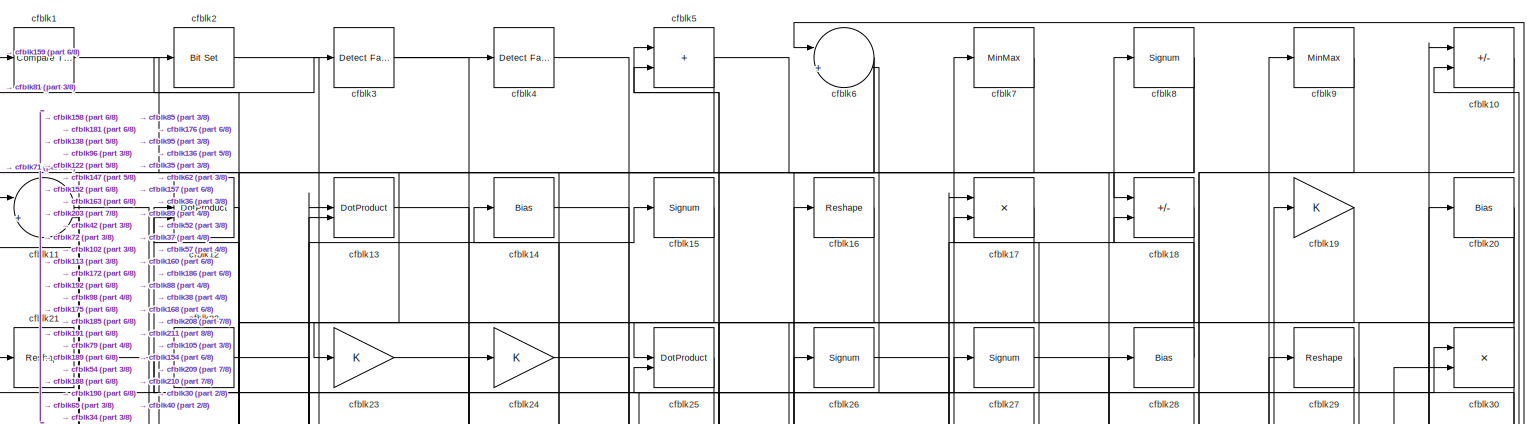
[diagram: root canvas - part 1/8, full width, top band]
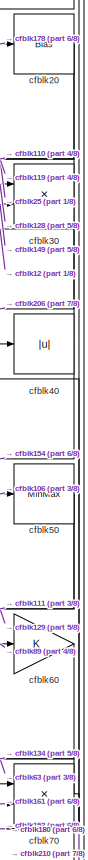
[diagram: root canvas - part 2/8, top right region]
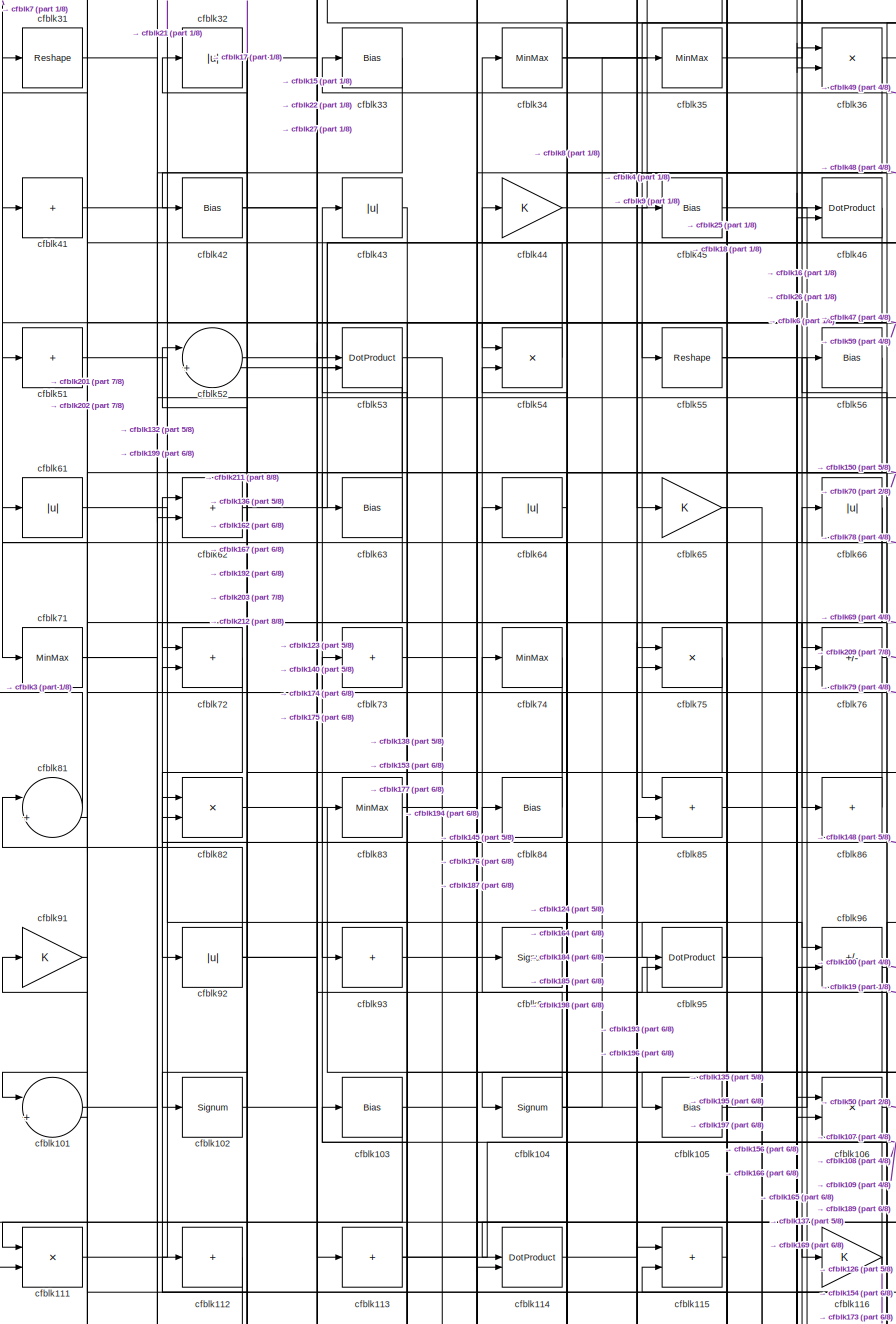
[diagram: root canvas - part 3/8, middle left region]
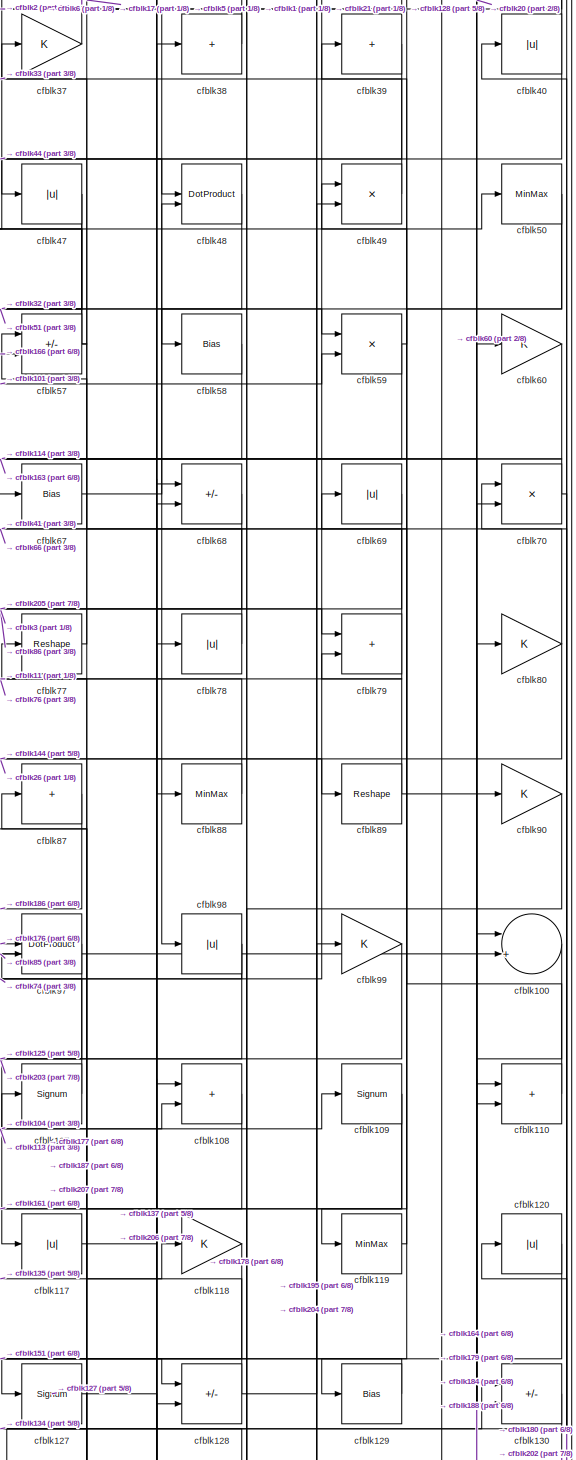
[diagram: root canvas - part 4/8, middle right region]
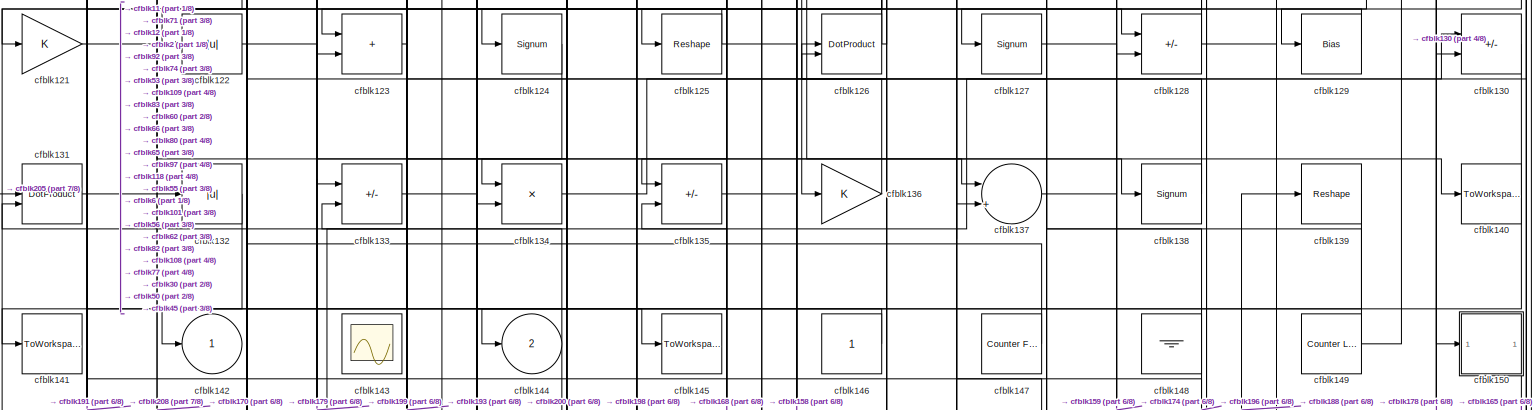
[diagram: root canvas - part 5/8, full width, middle band]
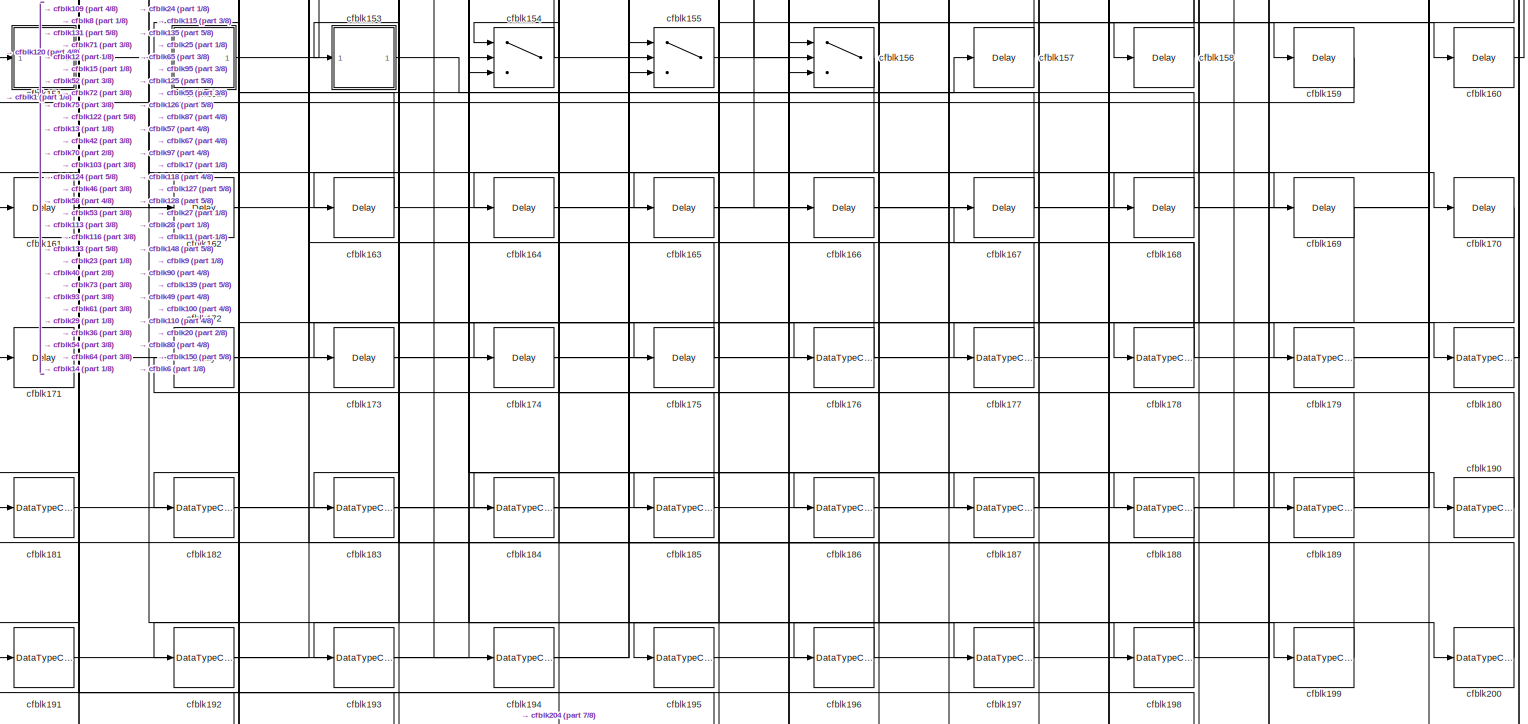
[diagram: root canvas - part 6/8, full width, bottom band]
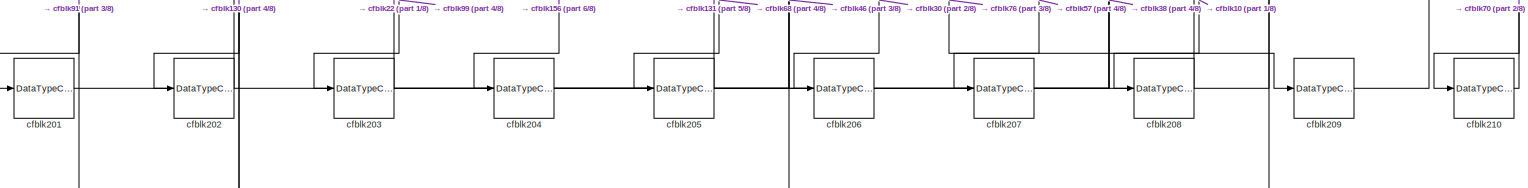
[diagram: root canvas - part 7/8, full width, bottom band]
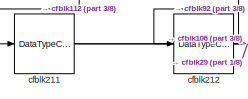
[diagram: root canvas - part 8/8, bottom left region]
MODEL slx_684dc59aae4f
KIND model
CONFIG AbsTol = auto
CONFIG EnableMultiTasking = off
CONFIG FixedStep = auto
CONFIG MaxStep = auto
CONFIG MinStep = auto
CONFIG RelTol = 1e-3
CONFIG SampleTimeConstraint = Unconstrained
CONFIG SolverName = VariableStepAuto
CONFIG StartTime = 0.0
CONFIG StopTime = 10.0
BLOCK [Reference] cfblk1  REF=hdlsllib/Logic and Bit
Operations/Compare
To Zero
  SourceBlock = hdlsllib/Logic and Bit\nOperations/Compare\nTo Zero
  SourceType = Compare To Zero
BLOCK [Sum] cfblk10
  IconShape = rectangular
  Inputs = +-
BLOCK [Sum] cfblk100
  Inputs = |++
BLOCK [Sum] cfblk101
  Inputs = |++
BLOCK [Signum] cfblk102
BLOCK [Bias] cfblk103
  Bias = 0.0
  SaturateOnIntegerOverflow = off
BLOCK [Signum] cfblk104
BLOCK [Bias] cfblk105
  Bias = 0.0
  SaturateOnIntegerOverflow = off
BLOCK [Product] cfblk106
  Inputs = */
  RndMeth = Zero
  SaturateOnIntegerOverflow = on
BLOCK [Signum] cfblk107
BLOCK [Sum] cfblk108
  IconShape = rectangular
BLOCK [Signum] cfblk109
BLOCK [Sum] cfblk11
  Inputs = |++
BLOCK [Sum] cfblk110
  IconShape = rectangular
BLOCK [Product] cfblk111
  Inputs = */
  RndMeth = Zero
  SaturateOnIntegerOverflow = on
BLOCK [Sum] cfblk112
  IconShape = rectangular
  Inputs = +
BLOCK [Sum] cfblk113
  IconShape = rectangular
  Inputs = +
BLOCK [DotProduct] cfblk114
  OutDataTypeStr = Inherit: Inherit via internal rule
BLOCK [Sum] cfblk115
  IconShape = rectangular
BLOCK [Gain] cfblk116
BLOCK [Abs] cfblk117
  SaturateOnIntegerOverflow = off
BLOCK [Gain] cfblk118
BLOCK [MinMax] cfblk119
BLOCK [DotProduct] cfblk12
  OutDataTypeStr = Inherit: Inherit via internal rule
BLOCK [Abs] cfblk120
  SaturateOnIntegerOverflow = off
BLOCK [Gain] cfblk121
BLOCK [Abs] cfblk122
  SaturateOnIntegerOverflow = off
BLOCK [Sum] cfblk123
  IconShape = rectangular
BLOCK [Signum] cfblk124
BLOCK [Reshape] cfblk125
BLOCK [DotProduct] cfblk126
  OutDataTypeStr = Inherit: Inherit via internal rule
BLOCK [Signum] cfblk127
BLOCK [Sum] cfblk128
  IconShape = rectangular
  Inputs = +-
BLOCK [Bias] cfblk129
  Bias = 0.0
  SaturateOnIntegerOverflow = off
BLOCK [DotProduct] cfblk13
  OutDataTypeStr = Inherit: Inherit via internal rule
BLOCK [Sum] cfblk130
  IconShape = rectangular
  Inputs = +-
BLOCK [DotProduct] cfblk131
  OutDataTypeStr = Inherit: Inherit via internal rule
BLOCK [Abs] cfblk132
  SaturateOnIntegerOverflow = off
BLOCK [Sum] cfblk133
  IconShape = rectangular
  Inputs = +-
BLOCK [Product] cfblk134
  Inputs = */
  RndMeth = Zero
  SaturateOnIntegerOverflow = on
BLOCK [Sum] cfblk135
  IconShape = rectangular
  Inputs = +-
BLOCK [Gain] cfblk136
BLOCK [Sum] cfblk137
  Inputs = |++
BLOCK [Signum] cfblk138
BLOCK [Reshape] cfblk139
BLOCK [Bias] cfblk14
  Bias = 0.0
  SaturateOnIntegerOverflow = off
BLOCK [ToWorkspace] cfblk140
  MaxDataPoints = inf
  SampleTime = -1
  SaveFormat = Timeseries
  VariableName = simout
BLOCK [ToWorkspace] cfblk141
  MaxDataPoints = inf
  SampleTime = -1
  SaveFormat = Timeseries
  VariableName = simout
BLOCK [Outport] cfblk142
  VectorParamsAs1DForOutWhenUnconnected = off
BLOCK [Scope] cfblk143
  Floating = on
  NumInputPorts = 1
  ScopeSpecificationString = Simulink.scopes.TimeScopeBlockCfg('CurrentConfiguration', extmgr.ConfigurationSet(extmgr.Configuration('Core','General UI',true,'FigureColor',[0.156862745098039 0.156862745098039 0.156862745098039]),extmgr.Configuration('Core','Source UI',true),extmgr.Configuration('Sources','WiredSimulink',true,'DataLoggingVariableName','ScopeData1','DataLoggingSaveFormat','StructureWithTime','DataLoggingLimitDat...<+2713ch>
BLOCK [Outport] cfblk144
  Port = 2
  VectorParamsAs1DForOutWhenUnconnected = off
BLOCK [ToWorkspace] cfblk145
  MaxDataPoints = inf
  SampleTime = -1
  SaveFormat = Timeseries
  VariableName = simout
BLOCK [Constant] cfblk146
  SampleTime = -1
BLOCK [Reference] cfblk147  REF=hdlsllib/Sources/Counter
Free-Running
  SourceBlock = hdlsllib/Sources/Counter\nFree-Running
  SourceType = Counter Free-Running
BLOCK [Ground] cfblk148
BLOCK [Reference] cfblk149  REF=hdlsllib/Sources/Counter
Limited
  SourceBlock = hdlsllib/Sources/Counter\nLimited
  SourceType = Counter Limited
BLOCK [Signum] cfblk15
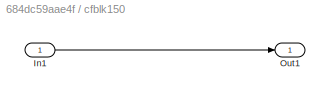
BLOCK [SubSystem] cfblk150
  LibrarySourceBlock = hdlsllib/Ports &\nSubsystems/Subsystem
BLOCK [Inport] cfblk150/In1
BLOCK [Outport] cfblk150/Out1
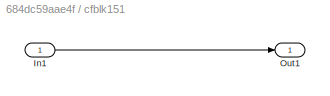
BLOCK [SubSystem] cfblk151
  LibrarySourceBlock = hdlsllib/Ports &\nSubsystems/Subsystem
BLOCK [Inport] cfblk151/In1
BLOCK [Outport] cfblk151/Out1
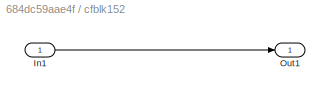
BLOCK [SubSystem] cfblk152
  LibrarySourceBlock = hdlsllib/Ports &\nSubsystems/Subsystem
BLOCK [Inport] cfblk152/In1
BLOCK [Outport] cfblk152/Out1
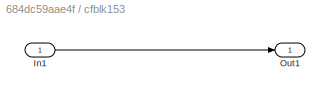
BLOCK [SubSystem] cfblk153
  LibrarySourceBlock = hdlsllib/Ports &\nSubsystems/Subsystem
BLOCK [Inport] cfblk153/In1
BLOCK [Outport] cfblk153/Out1
BLOCK [Switch] cfblk154
  InputSameDT = off
  SaturateOnIntegerOverflow = off
BLOCK [Switch] cfblk155
  InputSameDT = off
  SaturateOnIntegerOverflow = off
BLOCK [Switch] cfblk156
  InputSameDT = off
  SaturateOnIntegerOverflow = off
BLOCK [Delay] cfblk157
  InputPortMap = u0
  SampleTime = 1
BLOCK [Delay] cfblk158
  InputPortMap = u0
  SampleTime = 1
BLOCK [Delay] cfblk159
  InputPortMap = u0
  SampleTime = 1
BLOCK [Reshape] cfblk16
BLOCK [Delay] cfblk160
  InputPortMap = u0
  SampleTime = 1
BLOCK [Delay] cfblk161
  InputPortMap = u0
  SampleTime = 1
BLOCK [Delay] cfblk162
  InputPortMap = u0
  SampleTime = 1
BLOCK [Delay] cfblk163
  InputPortMap = u0
  SampleTime = 1
BLOCK [Delay] cfblk164
  InputPortMap = u0
  SampleTime = 1
BLOCK [Delay] cfblk165
  InputPortMap = u0
  SampleTime = 1
BLOCK [Delay] cfblk166
  InputPortMap = u0
  SampleTime = 1
BLOCK [Delay] cfblk167
  InputPortMap = u0
  SampleTime = 1
BLOCK [Delay] cfblk168
  InputPortMap = u0
  SampleTime = 1
BLOCK [Delay] cfblk169
  InputPortMap = u0
  SampleTime = 1
BLOCK [Product] cfblk17
  Inputs = */
  RndMeth = Zero
  SaturateOnIntegerOverflow = on
BLOCK [Delay] cfblk170
  InputPortMap = u0
  SampleTime = 1
BLOCK [Delay] cfblk171
  InputPortMap = u0
  SampleTime = 1
BLOCK [Delay] cfblk172
  InputPortMap = u0
  SampleTime = 1
BLOCK [Delay] cfblk173
  InputPortMap = u0
  SampleTime = 1
BLOCK [Delay] cfblk174
  InputPortMap = u0
  SampleTime = 1
BLOCK [Delay] cfblk175
  InputPortMap = u0
  SampleTime = 1
BLOCK [DataTypeConversion] cfblk176
  RndMeth = Floor
  SaturateOnIntegerOverflow = off
BLOCK [DataTypeConversion] cfblk177
  OutDataTypeStr = uint8
  RndMeth = Floor
  SaturateOnIntegerOverflow = off
BLOCK [DataTypeConversion] cfblk178
  RndMeth = Floor
  SaturateOnIntegerOverflow = off
BLOCK [DataTypeConversion] cfblk179
  OutDataTypeStr = uint8
  RndMeth = Floor
  SaturateOnIntegerOverflow = off
BLOCK [Sum] cfblk18
  IconShape = rectangular
  Inputs = +-
BLOCK [DataTypeConversion] cfblk180
  RndMeth = Floor
  SaturateOnIntegerOverflow = off
BLOCK [DataTypeConversion] cfblk181
  OutDataTypeStr = uint8
  RndMeth = Floor
  SaturateOnIntegerOverflow = off
BLOCK [DataTypeConversion] cfblk182
  OutDataTypeStr = uint8
  RndMeth = Floor
  SaturateOnIntegerOverflow = off
BLOCK [DataTypeConversion] cfblk183
  OutDataTypeStr = uint8
  RndMeth = Floor
  SaturateOnIntegerOverflow = off
BLOCK [DataTypeConversion] cfblk184
  OutDataTypeStr = uint8
  RndMeth = Floor
  SaturateOnIntegerOverflow = off
BLOCK [DataTypeConversion] cfblk185
  OutDataTypeStr = uint8
  RndMeth = Floor
  SaturateOnIntegerOverflow = off
BLOCK [DataTypeConversion] cfblk186
  RndMeth = Floor
  SaturateOnIntegerOverflow = off
BLOCK [DataTypeConversion] cfblk187
  OutDataTypeStr = uint8
  RndMeth = Floor
  SaturateOnIntegerOverflow = off
BLOCK [DataTypeConversion] cfblk188
  RndMeth = Floor
  SaturateOnIntegerOverflow = off
BLOCK [DataTypeConversion] cfblk189
  OutDataTypeStr = uint8
  RndMeth = Floor
  SaturateOnIntegerOverflow = off
BLOCK [Gain] cfblk19
BLOCK [DataTypeConversion] cfblk190
  OutDataTypeStr = uint8
  RndMeth = Floor
  SaturateOnIntegerOverflow = off
BLOCK [DataTypeConversion] cfblk191
  OutDataTypeStr = uint8
  RndMeth = Floor
  SaturateOnIntegerOverflow = off
BLOCK [DataTypeConversion] cfblk192
  OutDataTypeStr = uint8
  RndMeth = Floor
  SaturateOnIntegerOverflow = off
BLOCK [DataTypeConversion] cfblk193
  OutDataTypeStr = uint8
  RndMeth = Floor
  SaturateOnIntegerOverflow = off
BLOCK [DataTypeConversion] cfblk194
  OutDataTypeStr = uint8
  RndMeth = Floor
  SaturateOnIntegerOverflow = off
BLOCK [DataTypeConversion] cfblk195
  OutDataTypeStr = uint8
  RndMeth = Floor
  SaturateOnIntegerOverflow = off
BLOCK [DataTypeConversion] cfblk196
  OutDataTypeStr = uint8
  RndMeth = Floor
  SaturateOnIntegerOverflow = off
BLOCK [DataTypeConversion] cfblk197
  OutDataTypeStr = uint8
  RndMeth = Floor
  SaturateOnIntegerOverflow = off
BLOCK [DataTypeConversion] cfblk198
  RndMeth = Floor
  SaturateOnIntegerOverflow = off
BLOCK [DataTypeConversion] cfblk199
  OutDataTypeStr = uint8
  RndMeth = Floor
  SaturateOnIntegerOverflow = off
BLOCK [Reference] cfblk2  REF=simulink/Logic and Bit
Operations/Bit Set
  LibrarySourceBlock = hdlsllib/Logic and Bit\nOperations/Bit Set
  SourceBlock = simulink/Logic and Bit\nOperations/Bit Set
  SourceType = Bit Set
BLOCK [Bias] cfblk20
  Bias = 0.0
  SaturateOnIntegerOverflow = off
BLOCK [DataTypeConversion] cfblk200
  OutDataTypeStr = uint8
  RndMeth = Floor
  SaturateOnIntegerOverflow = off
BLOCK [DataTypeConversion] cfblk201
  OutDataTypeStr = uint8
  RndMeth = Floor
  SaturateOnIntegerOverflow = off
BLOCK [DataTypeConversion] cfblk202
  OutDataTypeStr = uint8
  RndMeth = Floor
  SaturateOnIntegerOverflow = off
BLOCK [DataTypeConversion] cfblk203
  RndMeth = Floor
  SaturateOnIntegerOverflow = off
BLOCK [DataTypeConversion] cfblk204
  OutDataTypeStr = uint8
  RndMeth = Floor
  SaturateOnIntegerOverflow = off
BLOCK [DataTypeConversion] cfblk205
  OutDataTypeStr = uint8
  RndMeth = Floor
  SaturateOnIntegerOverflow = off
BLOCK [DataTypeConversion] cfblk206
  OutDataTypeStr = uint8
  RndMeth = Floor
  SaturateOnIntegerOverflow = off
BLOCK [DataTypeConversion] cfblk207
  OutDataTypeStr = uint8
  RndMeth = Floor
  SaturateOnIntegerOverflow = off
BLOCK [DataTypeConversion] cfblk208
  OutDataTypeStr = uint8
  RndMeth = Floor
  SaturateOnIntegerOverflow = off
BLOCK [DataTypeConversion] cfblk209
  OutDataTypeStr = uint8
  RndMeth = Floor
  SaturateOnIntegerOverflow = off
BLOCK [Reshape] cfblk21
BLOCK [DataTypeConversion] cfblk210
  OutDataTypeStr = uint8
  RndMeth = Floor
  SaturateOnIntegerOverflow = off
BLOCK [DataTypeConversion] cfblk211
  RndMeth = Floor
  SaturateOnIntegerOverflow = off
BLOCK [DataTypeConversion] cfblk212
  OutDataTypeStr = uint8
  RndMeth = Floor
  SaturateOnIntegerOverflow = off
BLOCK [Sum] cfblk22
  IconShape = rectangular
  Inputs = +
BLOCK [Gain] cfblk23
BLOCK [Gain] cfblk24
BLOCK [DotProduct] cfblk25
  OutDataTypeStr = Inherit: Inherit via internal rule
BLOCK [Signum] cfblk26
BLOCK [Signum] cfblk27
BLOCK [Bias] cfblk28
  Bias = 0.0
  SaturateOnIntegerOverflow = off
BLOCK [Reshape] cfblk29
BLOCK [Reference] cfblk3  REF=hdlsllib/Logic and Bit
Operations/Detect Fall
Negative
  SourceBlock = hdlsllib/Logic and Bit\nOperations/Detect Fall\nNegative
  SourceType = Detect Fall Negative
BLOCK [Product] cfblk30
  Inputs = */
  RndMeth = Zero
  SaturateOnIntegerOverflow = on
BLOCK [Reshape] cfblk31
BLOCK [Abs] cfblk32
  SaturateOnIntegerOverflow = off
BLOCK [Bias] cfblk33
  Bias = 0.0
  SaturateOnIntegerOverflow = off
BLOCK [MinMax] cfblk34
BLOCK [MinMax] cfblk35
BLOCK [Product] cfblk36
  Inputs = */
  RndMeth = Zero
  SaturateOnIntegerOverflow = on
BLOCK [Gain] cfblk37
BLOCK [Sum] cfblk38
  IconShape = rectangular
  Inputs = +
BLOCK [Sum] cfblk39
  IconShape = rectangular
  Inputs = +
BLOCK [Reference] cfblk4  REF=hdlsllib/Logic and Bit
Operations/Detect Fall
Negative
  SourceBlock = hdlsllib/Logic and Bit\nOperations/Detect Fall\nNegative
  SourceType = Detect Fall Negative
BLOCK [Abs] cfblk40
  SaturateOnIntegerOverflow = off
BLOCK [Sum] cfblk41
  IconShape = rectangular
  Inputs = +
BLOCK [Bias] cfblk42
  Bias = 0.0
  SaturateOnIntegerOverflow = off
BLOCK [Abs] cfblk43
  SaturateOnIntegerOverflow = off
BLOCK [Gain] cfblk44
BLOCK [Bias] cfblk45
  Bias = 0.0
  SaturateOnIntegerOverflow = off
BLOCK [DotProduct] cfblk46
  OutDataTypeStr = Inherit: Inherit via internal rule
BLOCK [Abs] cfblk47
  SaturateOnIntegerOverflow = off
BLOCK [DotProduct] cfblk48
  OutDataTypeStr = Inherit: Inherit via internal rule
BLOCK [Product] cfblk49
  Inputs = */
  RndMeth = Zero
  SaturateOnIntegerOverflow = on
BLOCK [Sum] cfblk5
  IconShape = rectangular
BLOCK [MinMax] cfblk50
BLOCK [Sum] cfblk51
  IconShape = rectangular
  Inputs = +
BLOCK [Sum] cfblk52
  Inputs = |++
BLOCK [DotProduct] cfblk53
  OutDataTypeStr = Inherit: Inherit via internal rule
BLOCK [Product] cfblk54
  Inputs = */
  RndMeth = Zero
  SaturateOnIntegerOverflow = on
BLOCK [Reshape] cfblk55
BLOCK [Bias] cfblk56
  Bias = 0.0
  SaturateOnIntegerOverflow = off
BLOCK [Sum] cfblk57
  IconShape = rectangular
  Inputs = +-
BLOCK [Bias] cfblk58
  Bias = 0.0
  SaturateOnIntegerOverflow = off
BLOCK [Product] cfblk59
  Inputs = */
  RndMeth = Zero
  SaturateOnIntegerOverflow = on
BLOCK [Sum] cfblk6
  Inputs = |++
BLOCK [Gain] cfblk60
BLOCK [Abs] cfblk61
  SaturateOnIntegerOverflow = off
BLOCK [Sum] cfblk62
  IconShape = rectangular
BLOCK [Bias] cfblk63
  Bias = 0.0
  SaturateOnIntegerOverflow = off
BLOCK [Abs] cfblk64
  SaturateOnIntegerOverflow = off
BLOCK [Gain] cfblk65
BLOCK [Abs] cfblk66
  SaturateOnIntegerOverflow = off
BLOCK [Bias] cfblk67
  Bias = 0.0
  SaturateOnIntegerOverflow = off
BLOCK [Sum] cfblk68
  IconShape = rectangular
  Inputs = +-
BLOCK [Abs] cfblk69
  SaturateOnIntegerOverflow = off
BLOCK [MinMax] cfblk7
BLOCK [Product] cfblk70
  Inputs = */
  RndMeth = Zero
  SaturateOnIntegerOverflow = on
BLOCK [MinMax] cfblk71
BLOCK [Sum] cfblk72
  IconShape = rectangular
BLOCK [Sum] cfblk73
  IconShape = rectangular
  Inputs = +
BLOCK [MinMax] cfblk74
BLOCK [Product] cfblk75
  Inputs = */
  RndMeth = Zero
  SaturateOnIntegerOverflow = on
BLOCK [Sum] cfblk76
  IconShape = rectangular
  Inputs = +-
BLOCK [Reshape] cfblk77
BLOCK [Abs] cfblk78
  SaturateOnIntegerOverflow = off
BLOCK [Sum] cfblk79
  IconShape = rectangular
BLOCK [Signum] cfblk8
BLOCK [Gain] cfblk80
BLOCK [Sum] cfblk81
  Inputs = |++
BLOCK [Product] cfblk82
  Inputs = */
  RndMeth = Zero
  SaturateOnIntegerOverflow = on
BLOCK [MinMax] cfblk83
BLOCK [Bias] cfblk84
  Bias = 0.0
  SaturateOnIntegerOverflow = off
BLOCK [Sum] cfblk85
  IconShape = rectangular
BLOCK [Sum] cfblk86
  IconShape = rectangular
  Inputs = +
BLOCK [Sum] cfblk87
  IconShape = rectangular
  Inputs = +
BLOCK [MinMax] cfblk88
BLOCK [Reshape] cfblk89
BLOCK [MinMax] cfblk9
BLOCK [Gain] cfblk90
BLOCK [Gain] cfblk91
BLOCK [Abs] cfblk92
  SaturateOnIntegerOverflow = off
BLOCK [Sum] cfblk93
  IconShape = rectangular
  Inputs = +
BLOCK [Signum] cfblk94
BLOCK [DotProduct] cfblk95
  OutDataTypeStr = Inherit: Inherit via internal rule
BLOCK [Sum] cfblk96
  IconShape = rectangular
  Inputs = +-
BLOCK [DotProduct] cfblk97
  OutDataTypeStr = Inherit: Inherit via internal rule
BLOCK [Abs] cfblk98
  SaturateOnIntegerOverflow = off
BLOCK [Gain] cfblk99
LINE cfblk100:1 -> cfblk130:2
LINE cfblk101:1 -> cfblk59:2
LINE cfblk102:1 -> cfblk27:1
NET cfblk103:1 -> cfblk111:2, cfblk116:1
NET cfblk104:1 -> cfblk108:2, cfblk34:1, cfblk35:1
LINE cfblk105:1 -> cfblk19:1
LINE cfblk106:1 -> cfblk50:1
LINE cfblk107:1 -> cfblk74:1
LINE cfblk108:1 -> cfblk127:1
NET cfblk109:1 -> cfblk134:2, cfblk161:1
LINE cfblk10:1 -> cfblk208:1
LINE cfblk110:1 -> cfblk49:1
LINE cfblk111:1 -> cfblk84:1
LINE cfblk112:1 -> cfblk211:1
NET cfblk113:1 -> cfblk107:1, cfblk189:1
LINE cfblk114:1 -> cfblk109:1
LINE cfblk115:1 -> cfblk195:1
NET cfblk116:1 -> cfblk154:3, cfblk173:1, cfblk43:1
LINE cfblk117:1 -> cfblk78:1
LINE cfblk118:1 -> cfblk177:1
LINE cfblk119:1 -> cfblk69:1
LINE cfblk11:1 -> cfblk138:1
LINE cfblk120:1 -> cfblk151:1
LINE cfblk121:1 -> cfblk128:1
LINE cfblk122:1 -> cfblk179:1
LINE cfblk123:1 -> cfblk83:1
LINE cfblk124:1 -> cfblk193:1
NET cfblk125:1 -> cfblk121:1, cfblk158:1
NET cfblk126:1 -> cfblk101:2, cfblk56:1, cfblk62:1
LINE cfblk127:1 -> cfblk159:1
NET cfblk128:1 -> cfblk30:1, cfblk77:1
LINE cfblk129:1 -> cfblk123:1
LINE cfblk12:1 -> cfblk122:1
LINE cfblk130:1 -> cfblk202:1
LINE cfblk131:1 -> cfblk170:1
LINE cfblk132:1 -> cfblk141:1
LINE cfblk133:1 -> cfblk198:1
LINE cfblk134:1 -> cfblk130:1
LINE cfblk135:1 -> cfblk118:1
LINE cfblk136:1 -> cfblk82:1
LINE cfblk137:1 -> cfblk108:1
LINE cfblk138:1 -> cfblk53:2
LINE cfblk139:1 -> cfblk191:1
LINE cfblk13:1 -> cfblk185:1
LINE cfblk146:1 -> cfblk142:1
LINE cfblk147:1 -> cfblk2:1
NET cfblk148:1 -> cfblk196:1, cfblk82:2
NET cfblk149:1 -> cfblk126:1, cfblk30:2
LINE cfblk14:1 -> cfblk188:1
LINE cfblk150/In1:1 -> cfblk150/Out1:1
LINE cfblk150:1 -> cfblk165:1
LINE cfblk151/In1:1 -> cfblk151/Out1:1
LINE cfblk151:1 -> cfblk162:1
LINE cfblk152/In1:1 -> cfblk152/Out1:1
LINE cfblk152:1 -> cfblk70:1
LINE cfblk153/In1:1 -> cfblk153/Out1:1
LINE cfblk153:1 -> cfblk157:1
NET cfblk154:1 -> cfblk197:1, cfblk61:1
LINE cfblk155:1 -> cfblk180:1
LINE cfblk156:1 -> cfblk204:1
LINE cfblk157:1 -> cfblk17:1
LINE cfblk158:1 -> cfblk11:2
LINE cfblk159:1 -> cfblk1:1
LINE cfblk15:1 -> cfblk152:1
LINE cfblk160:1 -> cfblk6:1
LINE cfblk161:1 -> cfblk70:2
LINE cfblk162:1 -> cfblk52:1
LINE cfblk163:1 -> cfblk12:2
LINE cfblk164:1 -> cfblk110:1
LINE cfblk165:1 -> cfblk36:1
LINE cfblk166:1 -> cfblk57:2
LINE cfblk167:1 -> cfblk72:2
LINE cfblk168:1 -> cfblk135:2
LINE cfblk169:1 -> cfblk183:1
LINE cfblk16:1 -> cfblk36:2
LINE cfblk170:1 -> cfblk182:1
LINE cfblk171:1 -> cfblk156:3
LINE cfblk172:1 -> cfblk13:2
LINE cfblk173:1 -> cfblk200:1
LINE cfblk174:1 -> cfblk128:2
LINE cfblk175:1 -> cfblk53:1
NET cfblk176:1 -> cfblk25:2, cfblk97:1
LINE cfblk177:1 -> cfblk73:1
NET cfblk178:1 -> cfblk126:2, cfblk167:1, cfblk20:1
LINE cfblk179:1 -> cfblk90:1
LINE cfblk17:1 -> cfblk72:1
NET cfblk180:1 -> cfblk120:1, cfblk40:1
LINE cfblk181:1 -> cfblk155:1
LINE cfblk182:1 -> cfblk155:2
LINE cfblk183:1 -> cfblk155:3
LINE cfblk184:1 -> cfblk80:1
LINE cfblk185:1 -> cfblk64:1
NET cfblk186:1 -> cfblk28:1, cfblk67:1
LINE cfblk187:1 -> cfblk87:1
NET cfblk188:1 -> cfblk100:1, cfblk139:1, cfblk171:1
LINE cfblk189:1 -> cfblk14:1
LINE cfblk18:1 -> cfblk95:1
LINE cfblk190:1 -> cfblk172:1
LINE cfblk191:1 -> cfblk24:1
LINE cfblk192:1 -> cfblk13:1
LINE cfblk193:1 -> cfblk75:1
LINE cfblk194:1 -> cfblk75:2
LINE cfblk195:1 -> cfblk49:2
LINE cfblk196:1 -> cfblk115:1
LINE cfblk197:1 -> cfblk115:2
NET cfblk198:1 -> cfblk103:1, cfblk54:2
LINE cfblk199:1 -> cfblk133:1
LINE cfblk19:1 -> cfblk102:1
LINE cfblk1:1 -> cfblk88:1
LINE cfblk200:1 -> cfblk133:2
LINE cfblk201:1 -> cfblk46:1
LINE cfblk202:1 -> cfblk91:1
NET cfblk203:1 -> cfblk22:1, cfblk38:1, cfblk46:2
LINE cfblk204:1 -> cfblk99:1
LINE cfblk205:1 -> cfblk131:1
LINE cfblk206:1 -> cfblk68:1
LINE cfblk207:1 -> cfblk68:2
LINE cfblk208:1 -> cfblk131:2
LINE cfblk209:1 -> cfblk10:1
NET cfblk20:1 -> cfblk110:2, cfblk119:1
LINE cfblk210:1 -> cfblk10:2
NET cfblk211:1 -> cfblk106:2, cfblk29:1
LINE cfblk212:1 -> cfblk112:1
LINE cfblk21:1 -> cfblk96:1
LINE cfblk22:1 -> cfblk113:1
LINE cfblk23:1 -> cfblk175:1
LINE cfblk24:1 -> cfblk190:1
LINE cfblk25:1 -> cfblk85:1
LINE cfblk26:1 -> cfblk89:1
LINE cfblk27:1 -> cfblk160:1
LINE cfblk28:1 -> cfblk8:1
LINE cfblk29:1 -> cfblk154:1
LINE cfblk2:1 -> cfblk98:1
NET cfblk30:1 -> cfblk206:1, cfblk25:1
LINE cfblk31:1 -> cfblk76:1
LINE cfblk32:1 -> cfblk59:1
LINE cfblk33:1 -> cfblk62:2
NET cfblk34:1 -> cfblk106:1, cfblk9:1
LINE cfblk35:1 -> cfblk26:1
NET cfblk36:1 -> cfblk164:1, cfblk18:2
LINE cfblk37:1 -> cfblk6:2
LINE cfblk38:1 -> cfblk21:1
LINE cfblk39:1 -> cfblk47:1
NET cfblk3:1 -> cfblk4:1, cfblk79:1
NET cfblk40:1 -> cfblk12:1, cfblk154:2
LINE cfblk41:1 -> cfblk55:1
NET cfblk42:1 -> cfblk15:1, cfblk174:1
LINE cfblk43:1 -> cfblk93:1
LINE cfblk44:1 -> cfblk48:1
LINE cfblk45:1 -> cfblk150:1
LINE cfblk46:1 -> cfblk153:1
NET cfblk47:1 -> cfblk114:2, cfblk51:1
LINE cfblk48:1 -> cfblk58:1
LINE cfblk49:1 -> cfblk33:1
LINE cfblk4:1 -> cfblk65:1
NET cfblk50:1 -> cfblk111:1, cfblk129:1
LINE cfblk51:1 -> cfblk94:1
LINE cfblk52:1 -> cfblk7:1
NET cfblk53:1 -> cfblk194:1, cfblk81:2
LINE cfblk54:1 -> cfblk31:1
NET cfblk55:1 -> cfblk137:1, cfblk169:1
LINE cfblk56:1 -> cfblk104:1
NET cfblk57:1 -> cfblk17:2, cfblk207:1, cfblk5:1, cfblk5:2
LINE cfblk58:1 -> cfblk163:1
NET cfblk59:1 -> cfblk114:1, cfblk39:1
NET cfblk5:1 -> cfblk18:1, cfblk23:1
LINE cfblk60:1 -> cfblk134:1
LINE cfblk61:1 -> cfblk156:1
LINE cfblk62:1 -> cfblk16:1
NET cfblk63:1 -> cfblk101:1, cfblk52:2
LINE cfblk64:1 -> cfblk184:1
NET cfblk65:1 -> cfblk135:1, cfblk156:2
NET cfblk66:1 -> cfblk124:1, cfblk85:2
LINE cfblk67:1 -> cfblk48:2
LINE cfblk68:1 -> cfblk205:1
LINE cfblk69:1 -> cfblk86:1
NET cfblk6:1 -> cfblk136:1, cfblk42:1
NET cfblk70:1 -> cfblk210:1, cfblk63:1
NET cfblk71:1 -> cfblk132:1, cfblk199:1
LINE cfblk72:1 -> cfblk92:1
LINE cfblk73:1 -> cfblk176:1
LINE cfblk74:1 -> cfblk123:2
LINE cfblk75:1 -> cfblk192:1
LINE cfblk76:1 -> cfblk209:1
LINE cfblk77:1 -> cfblk37:1
LINE cfblk78:1 -> cfblk66:1
NET cfblk79:1 -> cfblk41:1, cfblk76:2
LINE cfblk7:1 -> cfblk71:1
NET cfblk80:1 -> cfblk144:1, cfblk57:1
LINE cfblk81:1 -> cfblk3:1
LINE cfblk82:1 -> cfblk137:2
LINE cfblk83:1 -> cfblk145:1
LINE cfblk84:1 -> cfblk32:1
LINE cfblk85:1 -> cfblk100:2
LINE cfblk86:1 -> cfblk44:1
LINE cfblk87:1 -> cfblk186:1
LINE cfblk88:1 -> cfblk11:1
NET cfblk89:1 -> cfblk60:1, cfblk79:2
NET cfblk8:1 -> cfblk181:1, cfblk54:1
LINE cfblk90:1 -> cfblk178:1
LINE cfblk91:1 -> cfblk201:1
NET cfblk92:1 -> cfblk140:1, cfblk212:1, cfblk81:1, cfblk95:2
LINE cfblk93:1 -> cfblk187:1
LINE cfblk94:1 -> cfblk96:2
NET cfblk95:1 -> cfblk166:1, cfblk45:1
LINE cfblk96:1 -> cfblk105:1
LINE cfblk97:1 -> cfblk125:1
NET cfblk98:1 -> cfblk117:1, cfblk97:2
LINE cfblk99:1 -> cfblk203:1
LINE cfblk9:1 -> cfblk168:1
note: NET lines group one-source signal fan-out (src -> all destinations, sorted); 1:1 wires keep LINE
